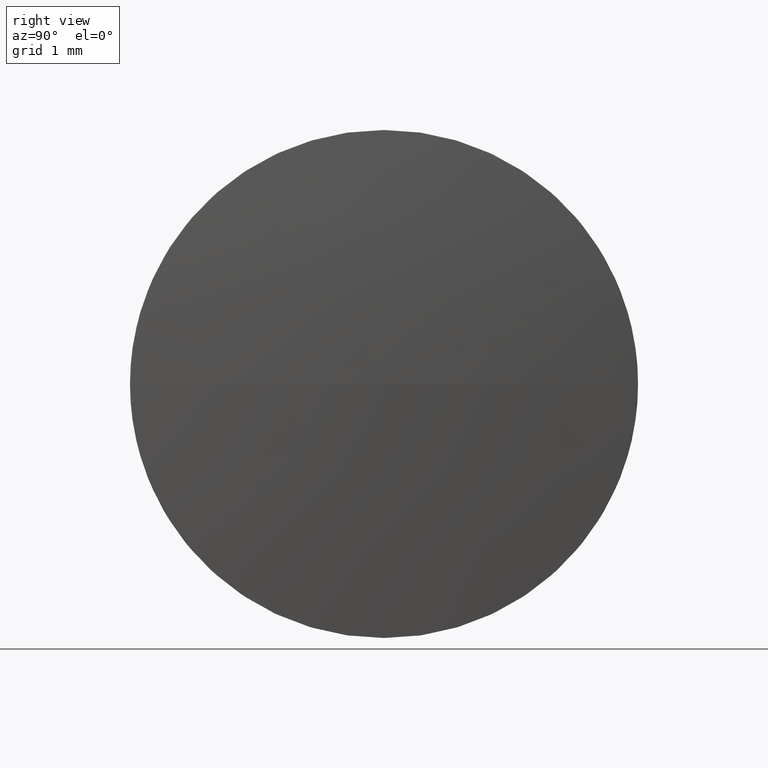
[diagram: clean part render]
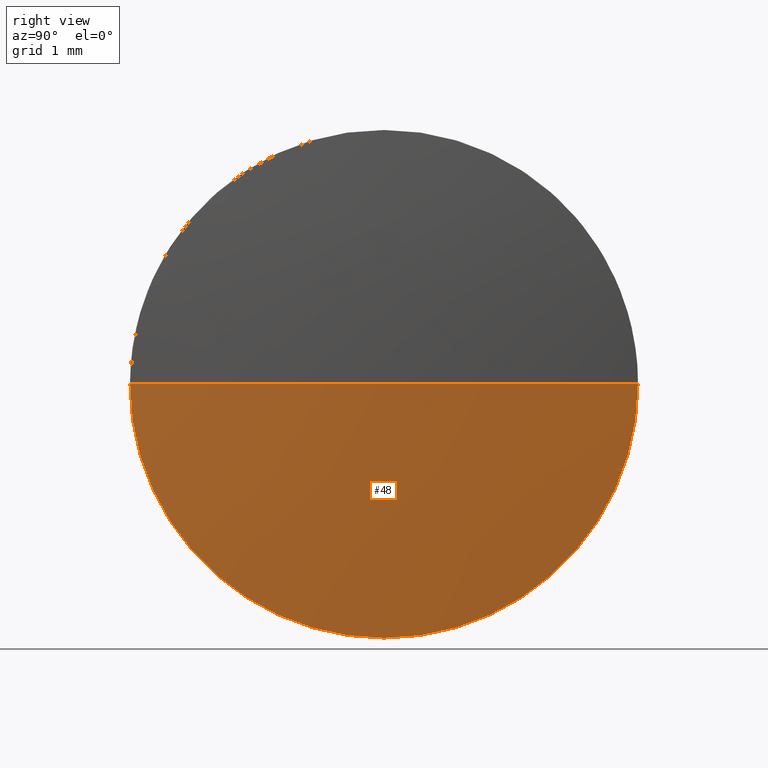
[diagram: same view with one face highlighted and labeled with its STEP entity id]
A machine part, right view. The second image highlights one B-rep face of the part: STEP entity #48.
In plain terms, the highlighted spherical surface has radius 33.15 mm.
Its self-contained STEP definition (entity closure, byte-faithful):
#2 = CIRCLE ( 'NONE', #68, 3.150000000000013700 ) ;
#3 = AXIS2_PLACEMENT_3D ( 'NONE', #165, #56, #93 ) ;
#4 = VERTEX_POINT ( 'NONE', #42 ) ;
#9 = DIRECTION ( 'NONE',  ( -1.000000000000000000, 0.0000000000000000000, 0.0000000000000000000 ) ) ;
#11 = CIRCLE ( 'NONE', #3, 3.150000000000013700 ) ;
#15 = DIRECTION ( 'NONE',  ( 0.0000000000000000000, -1.000000000000000000, 0.0000000000000000000 ) ) ;
#19 = EDGE_LOOP ( 'NONE', ( #75, #73, #128, #107 ) ) ;
#23 = DIRECTION ( 'NONE',  ( 0.0000000000000000000, 0.0000000000000000000, -1.000000000000000000 ) ) ;
#29 = CARTESIAN_POINT ( 'NONE',  ( 454.3789024889172800, 224.6626212863788800, 0.0000000000000000000 ) ) ;
#33 = DIRECTION ( 'NONE',  ( 0.0000000000000000000, -1.000000000000000000, -1.224646799147353200E-016 ) ) ;
#34 = DIRECTION ( 'NONE',  ( 0.0000000000000000000, -1.224646799147353200E-016, 1.000000000000000000 ) ) ;
#41 = AXIS2_PLACEMENT_3D ( 'NONE', #95, #34, #33 ) ;
#42 = CARTESIAN_POINT ( 'NONE',  ( 487.3789024889172800, 227.8126212863787400, 3.857637417314024600E-016 ) ) ;
#48 = ADVANCED_FACE ( 'NONE', ( #175 ), #80, .T. ) ;
#51 = DIRECTION ( 'NONE',  ( 0.0000000000000000000, 0.0000000000000000000, 1.000000000000000000 ) ) ;
#56 = DIRECTION ( 'NONE',  ( -1.000000000000000000, -0.0000000000000000000, -0.0000000000000000000 ) ) ;
#60 = CARTESIAN_POINT ( 'NONE',  ( 487.3789024889172800, 224.6626212863787900, 0.0000000000000000000 ) ) ;
#62 = DIRECTION ( 'NONE',  ( 0.0000000000000000000, 0.0000000000000000000, 1.000000000000000000 ) ) ;
#68 = AXIS2_PLACEMENT_3D ( 'NONE', #60, #143, #62 ) ;
#73 = ORIENTED_EDGE ( 'NONE', *, *, #180, .T. ) ;
#74 = AXIS2_PLACEMENT_3D ( 'NONE', #29, #51, #15 ) ;
#75 = ORIENTED_EDGE ( 'NONE', *, *, #144, .F. ) ;
#80 = SPHERICAL_SURFACE ( 'NONE', #74, 33.15000000000001300 ) ;
#87 = CARTESIAN_POINT ( 'NONE',  ( 487.3789024889172800, 221.5126212863788700, 0.0000000000000000000 ) ) ;
#91 = VERTEX_POINT ( 'NONE', #148 ) ;
#93 = DIRECTION ( 'NONE',  ( 0.0000000000000000000, 0.0000000000000000000, 1.000000000000000000 ) ) ;
#95 = CARTESIAN_POINT ( 'NONE',  ( 454.3789024889172800, 224.6626212863788800, 0.0000000000000000000 ) ) ;
#98 = CIRCLE ( 'NONE', #41, 33.15000000000001300 ) ;
#107 = ORIENTED_EDGE ( 'NONE', *, *, #138, .F. ) ;
#108 = VERTEX_POINT ( 'NONE', #185 ) ;
#125 = CIRCLE ( 'NONE', #134, 33.15000000000001300 ) ;
#126 = CARTESIAN_POINT ( 'NONE',  ( 454.3789024889172800, 224.6626212863788800, 0.0000000000000000000 ) ) ;
#128 = ORIENTED_EDGE ( 'NONE', *, *, #155, .F. ) ;
#134 = AXIS2_PLACEMENT_3D ( 'NONE', #126, #23, #9 ) ;
#136 = VERTEX_POINT ( 'NONE', #87 ) ;
#138 = EDGE_CURVE ( 'NONE', #4, #91, #11, .T. ) ;
#143 = DIRECTION ( 'NONE',  ( -1.000000000000000000, -0.0000000000000000000, -0.0000000000000000000 ) ) ;
#144 = EDGE_CURVE ( 'NONE', #108, #4, #98, .T. ) ;
#148 = CARTESIAN_POINT ( 'NONE',  ( 487.3789024889172800, 224.6626212863787900, -3.150000000000013700 ) ) ;
#155 = EDGE_CURVE ( 'NONE', #91, #136, #2, .T. ) ;
#165 = CARTESIAN_POINT ( 'NONE',  ( 487.3789024889172800, 224.6626212863787900, 0.0000000000000000000 ) ) ;
#175 = FACE_OUTER_BOUND ( 'NONE', #19, .T. ) ;
#180 = EDGE_CURVE ( 'NONE', #108, #136, #125, .T. ) ;
#185 = CARTESIAN_POINT ( 'NONE',  ( 487.5289024889172500, 224.6626212863788800, 0.0000000000000000000 ) ) ;